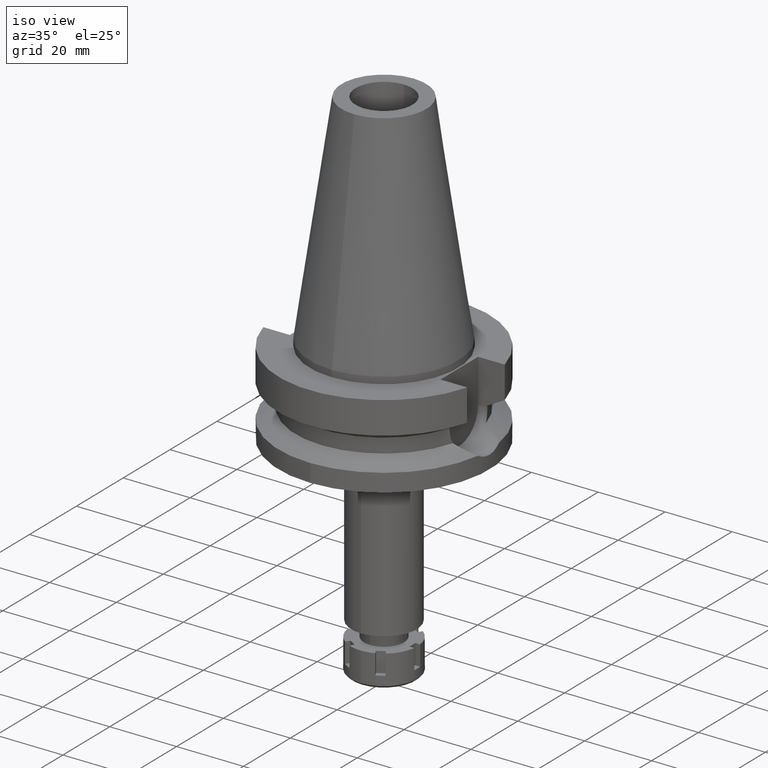
[diagram: clean part render]
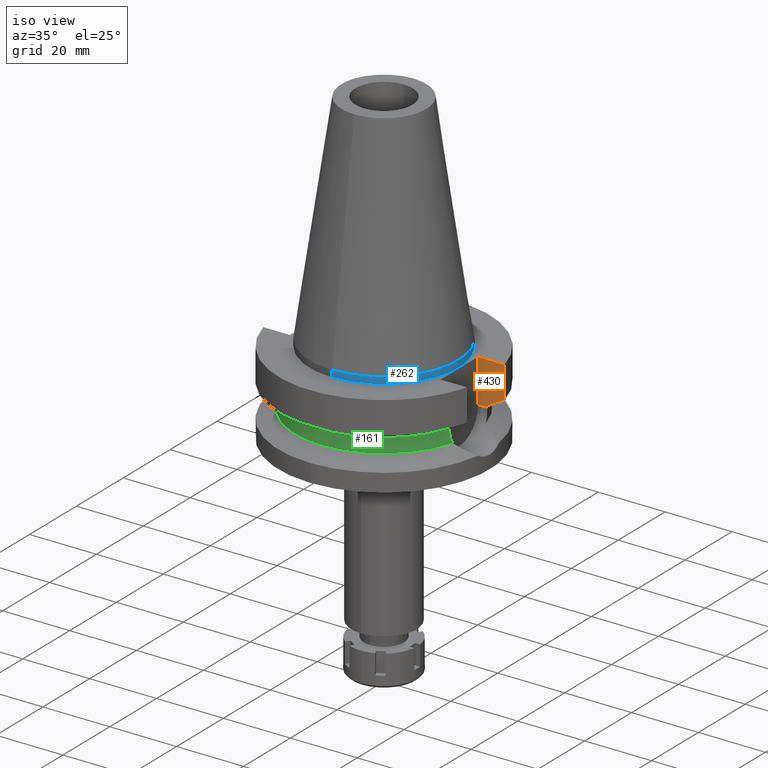
[diagram: same view with three faces highlighted in distinct colors, each labeled with its STEP entity id]
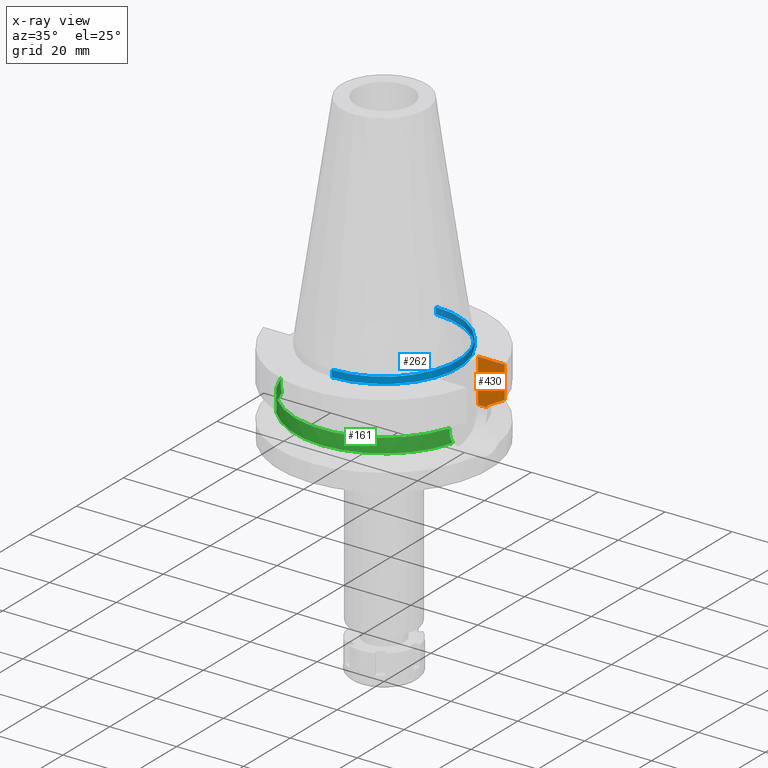
[diagram: x-ray of the same camera — body ghosted, the three highlighted faces saturated]
A machine part, iso view with three faces highlighted in distinct colors.
The next image is the same camera in x-ray (body ghosted, the three faces saturated) — at least one of them is partly hidden behind the body in this view.
Their STEP definitions:

[orange] entity #430 — the highlighted planar face has unit normal (0, 1, 0).
#33 = PLANE ( 'NONE',  #1745 ) ;
#163 = VECTOR ( 'NONE', #3622, 1000.000000000000000 ) ;
#307 = CARTESIAN_POINT ( 'NONE',  ( 30.45402272279000044, 8.050000000000000711, -2.000000000000000000 ) ) ;
#346 = CARTESIAN_POINT ( 'NONE',  ( 22.50000000000000000, 8.050000000000000711, -14.94999999999999929 ) ) ;
#351 = CARTESIAN_POINT ( 'NONE',  ( 25.24772413192000187, 8.049995413579999592, -14.45229204484000007 ) ) ;
#378 = EDGE_CURVE ( 'NONE', #3219, #3565, #2565, .T. ) ;
#393 = DIRECTION ( 'NONE',  ( -0.0000000000000000000, 1.000000000000000000, 0.0000000000000000000 ) ) ;
#430 = ADVANCED_FACE ( 'NONE', ( #2571 ), #33, .F. ) ;
#501 = B_SPLINE_CURVE_WITH_KNOTS ( 'NONE', 3,
 ( #934, #2376, #1171, #351 ),
 .UNSPECIFIED., .F., .F.,
 ( 4, 4 ),
 ( 0.0000000000000000000, 1.000000000000000000 ),
 .UNSPECIFIED. ) ;
#606 = DIRECTION ( 'NONE',  ( 1.000000000000000000, -1.551559937893000172E-14, 0.0000000000000000000 ) ) ;
#670 = VERTEX_POINT ( 'NONE', #702 ) ;
#702 = CARTESIAN_POINT ( 'NONE',  ( 30.45402291392999672, 8.049999276886000033, -11.56551216559999951 ) ) ;
#705 = LINE ( 'NONE', #3414, #2577 ) ;
#713 = DIRECTION ( 'NONE',  ( 0.0000000000000000000, 0.0000000000000000000, -1.000000000000000000 ) ) ;
#731 = LINE ( 'NONE', #3269, #1635 ) ;
#934 = CARTESIAN_POINT ( 'NONE',  ( 30.45402291392999672, 8.049999276886000033, -11.56551216559999951 ) ) ;
#997 = CARTESIAN_POINT ( 'NONE',  ( 22.50000000000000000, 8.050000000000000711, -2.000000000000000000 ) ) ;
#1057 = ORIENTED_EDGE ( 'NONE', *, *, #2336, .T. ) ;
#1092 = EDGE_CURVE ( 'NONE', #670, #1173, #1362, .T. ) ;
#1098 = VECTOR ( 'NONE', #713, 1000.000000000000000 ) ;
#1171 = CARTESIAN_POINT ( 'NONE',  ( 26.83754613842328496, 8.049990817004408328, -13.57774889371837901 ) ) ;
#1173 = VERTEX_POINT ( 'NONE', #307 ) ;
#1207 = EDGE_CURVE ( 'NONE', #3565, #1308, #705, .T. ) ;
#1270 = VECTOR ( 'NONE', #606, 1000.000000000000000 ) ;
#1308 = VERTEX_POINT ( 'NONE', #3594 ) ;
#1362 = LINE ( 'NONE', #2490, #163 ) ;
#1488 = ORIENTED_EDGE ( 'NONE', *, *, #2643, .F. ) ;
#1495 = VERTEX_POINT ( 'NONE', #3138 ) ;
#1513 = DIRECTION ( 'NONE',  ( 1.000000000000000000, 0.0000000000000000000, 0.0000000000000000000 ) ) ;
#1635 = VECTOR ( 'NONE', #1862, 1000.000000000000000 ) ;
#1745 = AXIS2_PLACEMENT_3D ( 'NONE', #2869, #393, #1513 ) ;
#1772 = EDGE_LOOP ( 'NONE', ( #1488, #3179, #2262, #1057, #3397, #2925 ) ) ;
#1847 = EDGE_CURVE ( 'NONE', #1495, #1173, #731, .T. ) ;
#1862 = DIRECTION ( 'NONE',  ( 1.000000000000000000, -3.506251283225999947E-14, 0.0000000000000000000 ) ) ;
#2079 = DIRECTION ( 'NONE',  ( 2.938140796406073577E-06, -9.215082086002228230E-06, 0.9999999999532247497 ) ) ;
#2258 = CARTESIAN_POINT ( 'NONE',  ( 25.24772266958000344, 8.050000000000000711, -14.94999999999999929 ) ) ;
#2262 = ORIENTED_EDGE ( 'NONE', *, *, #1847, .F. ) ;
#2336 = EDGE_CURVE ( 'NONE', #1495, #3219, #3567, .T. ) ;
#2376 = CARTESIAN_POINT ( 'NONE',  ( 28.57292326956562789, 8.049998554712924914, -12.61549606729479223 ) ) ;
#2490 = CARTESIAN_POINT ( 'NONE',  ( 30.45402291392999672, 8.049999276886000033, -11.56551216559999951 ) ) ;
#2565 = LINE ( 'NONE', #3147, #1270 ) ;
#2571 = FACE_OUTER_BOUND ( 'NONE', #1772, .T. ) ;
#2577 = VECTOR ( 'NONE', #2079, 1000.000000000000114 ) ;
#2643 = EDGE_CURVE ( 'NONE', #670, #1308, #501, .T. ) ;
#2869 = CARTESIAN_POINT ( 'NONE',  ( 22.50000000000000000, 8.050000000000000711, -14.94999999999999929 ) ) ;
#2925 = ORIENTED_EDGE ( 'NONE', *, *, #1207, .T. ) ;
#3138 = CARTESIAN_POINT ( 'NONE',  ( 22.50000000000000000, 8.050000000000000711, -2.000000000000000000 ) ) ;
#3147 = CARTESIAN_POINT ( 'NONE',  ( 22.50000000000000000, 8.050000000000000711, -14.94999999999999929 ) ) ;
#3179 = ORIENTED_EDGE ( 'NONE', *, *, #1092, .T. ) ;
#3219 = VERTEX_POINT ( 'NONE', #346 ) ;
#3269 = CARTESIAN_POINT ( 'NONE',  ( 22.50000000000000000, 8.050000000000000711, -2.000000000000000000 ) ) ;
#3397 = ORIENTED_EDGE ( 'NONE', *, *, #378, .T. ) ;
#3414 = CARTESIAN_POINT ( 'NONE',  ( 25.24772266958000344, 8.050000000000000711, -14.94999999999999929 ) ) ;
#3565 = VERTEX_POINT ( 'NONE', #2258 ) ;
#3567 = LINE ( 'NONE', #997, #1098 ) ;
#3594 = CARTESIAN_POINT ( 'NONE',  ( 25.24772413192000187, 8.049995413579999592, -14.45229204484000007 ) ) ;
#3622 = DIRECTION ( 'NONE',  ( -1.998240924063988768E-08, 7.559588444288955990E-08, 0.9999999999999968914 ) ) ;

[blue] entity #262 — the highlighted cylindrical surface (partial cylindrical patch) has radius 22.225 mm, axis along (0, 0, -1).
#25 = CARTESIAN_POINT ( 'NONE',  ( 0.0000000000000000000, -22.22500000000000142, 2.842170943039999687E-14 ) ) ;
#95 = CARTESIAN_POINT ( 'NONE',  ( 0.0000000000000000000, 2.117659245085999800E-14, 72.92000000000000171 ) ) ;
#174 = AXIS2_PLACEMENT_3D ( 'NONE', #1125, #2842, #3377 ) ;
#211 = AXIS2_PLACEMENT_3D ( 'NONE', #95, #1217, #2343 ) ;
#262 = ADVANCED_FACE ( 'NONE', ( #1496 ), #1086, .T. ) ;
#382 = CARTESIAN_POINT ( 'NONE',  ( 0.0000000000000000000, 2.117659245085999800E-14, -2.000000000000000000 ) ) ;
#767 = ORIENTED_EDGE ( 'NONE', *, *, #3142, .T. ) ;
#890 = DIRECTION ( 'NONE',  ( 0.0000000000000000000, 0.0000000000000000000, 1.000000000000000000 ) ) ;
#938 = DIRECTION ( 'NONE',  ( 0.0000000000000000000, 8.171241461240999414E-14, -1.000000000000000000 ) ) ;
#1086 = CYLINDRICAL_SURFACE ( 'NONE', #211, 22.22500000000000142 ) ;
#1125 = CARTESIAN_POINT ( 'NONE',  ( 0.0000000000000000000, 1.625106302469000024E-14, 2.842170943039999687E-14 ) ) ;
#1174 = CARTESIAN_POINT ( 'NONE',  ( 0.0000000000000000000, 22.22500000000000142, 6.394884621841000123E-14 ) ) ;
#1217 = DIRECTION ( 'NONE',  ( 0.0000000000000000000, 0.0000000000000000000, -1.000000000000000000 ) ) ;
#1323 = VERTEX_POINT ( 'NONE', #3035 ) ;
#1496 = FACE_OUTER_BOUND ( 'NONE', #3603, .T. ) ;
#1690 = CARTESIAN_POINT ( 'NONE',  ( 0.0000000000000000000, 22.22500000000000142, 7.105427357600999334E-14 ) ) ;
#1728 = DIRECTION ( 'NONE',  ( 0.0000000000000000000, -1.000000000000000000, 0.0000000000000000000 ) ) ;
#1747 = CARTESIAN_POINT ( 'NONE',  ( 0.0000000000000000000, -22.22500000000000142, 6.394884621841000123E-14 ) ) ;
#1769 = DIRECTION ( 'NONE',  ( 0.0000000000000000000, -8.704148513061000085E-14, -1.000000000000000000 ) ) ;
#1777 = LINE ( 'NONE', #1174, #1982 ) ;
#1982 = VECTOR ( 'NONE', #938, 1000.000000000000000 ) ;
#2089 = ORIENTED_EDGE ( 'NONE', *, *, #3194, .T. ) ;
#2245 = EDGE_CURVE ( 'NONE', #2921, #2948, #1777, .T. ) ;
#2343 = DIRECTION ( 'NONE',  ( 0.0000000000000000000, -1.000000000000000000, 0.0000000000000000000 ) ) ;
#2524 = VERTEX_POINT ( 'NONE', #25 ) ;
#2528 = ORIENTED_EDGE ( 'NONE', *, *, #2245, .F. ) ;
#2828 = CIRCLE ( 'NONE', #3192, 22.22500000000000142 ) ;
#2842 = DIRECTION ( 'NONE',  ( 0.0000000000000000000, 0.0000000000000000000, -1.000000000000000000 ) ) ;
#2918 = LINE ( 'NONE', #1747, #3019 ) ;
#2919 = EDGE_CURVE ( 'NONE', #2921, #2524, #3305, .T. ) ;
#2921 = VERTEX_POINT ( 'NONE', #1690 ) ;
#2948 = VERTEX_POINT ( 'NONE', #3363 ) ;
#3019 = VECTOR ( 'NONE', #1769, 1000.000000000000000 ) ;
#3035 = CARTESIAN_POINT ( 'NONE',  ( 0.0000000000000000000, -22.22500000000000142, -2.000000000000000000 ) ) ;
#3142 = EDGE_CURVE ( 'NONE', #1323, #2948, #2828, .T. ) ;
#3192 = AXIS2_PLACEMENT_3D ( 'NONE', #382, #890, #1728 ) ;
#3194 = EDGE_CURVE ( 'NONE', #2524, #1323, #2918, .T. ) ;
#3245 = ORIENTED_EDGE ( 'NONE', *, *, #2919, .T. ) ;
#3305 = CIRCLE ( 'NONE', #174, 22.22500000000000142 ) ;
#3363 = CARTESIAN_POINT ( 'NONE',  ( 0.0000000000000000000, 22.22500000000000142, -2.000000000000000000 ) ) ;
#3377 = DIRECTION ( 'NONE',  ( 0.0000000000000000000, 1.000000000000000000, 0.0000000000000000000 ) ) ;
#3603 = EDGE_LOOP ( 'NONE', ( #3245, #2089, #767, #2528 ) ) ;

[green] entity #161 — the highlighted cylindrical surface (partial cylindrical patch) has radius 26.5 mm, axis along (0, 0, -1).
#32 = EDGE_CURVE ( 'NONE', #2640, #3425, #2954, .T. ) ;
#63 = CARTESIAN_POINT ( 'NONE',  ( -25.24772266958000344, -8.050000000000000711, -14.94999999999999929 ) ) ;
#97 = CARTESIAN_POINT ( 'NONE',  ( 25.24772266958000344, -8.050000000000000711, -14.45225699861000024 ) ) ;
#161 = ADVANCED_FACE ( 'NONE', ( #2606 ), #1384, .T. ) ;
#229 = CARTESIAN_POINT ( 'NONE',  ( 25.53175183775000079, -7.097862220092999941, -18.74774300138999905 ) ) ;
#263 = DIRECTION ( 'NONE',  ( 0.0000000000000000000, -1.000000000000000000, 0.0000000000000000000 ) ) ;
#313 = CARTESIAN_POINT ( 'NONE',  ( -25.32419709970372068, -7.806318959917333267, -16.91578803894913108 ) ) ;
#359 = DIRECTION ( 'NONE',  ( 1.014647797275021697E-06, 3.182305717125068961E-06, -0.9999999999944216844 ) ) ;
#417 = DIRECTION ( 'NONE',  ( 0.0000000000000000000, 0.0000000000000000000, -1.000000000000000000 ) ) ;
#429 = EDGE_CURVE ( 'NONE', #2083, #3082, #1722, .T. ) ;
#458 = CARTESIAN_POINT ( 'NONE',  ( 25.31950905643225269, -7.821515286679913359, -16.85442525727320273 ) ) ;
#510 = AXIS2_PLACEMENT_3D ( 'NONE', #2032, #815, #263 ) ;
#511 = CARTESIAN_POINT ( 'NONE',  ( 25.27268336911707891, -7.971811480182248388, -16.08115959834941222 ) ) ;
#585 = CARTESIAN_POINT ( 'NONE',  ( 0.0000000000000000000, 0.0000000000000000000, -18.74774300138999905 ) ) ;
#622 = CIRCLE ( 'NONE', #2107, 26.50000000000000000 ) ;
#651 = ORIENTED_EDGE ( 'NONE', *, *, #863, .T. ) ;
#744 = VERTEX_POINT ( 'NONE', #97 ) ;
#763 = CARTESIAN_POINT ( 'NONE',  ( 25.28048358772242210, -7.947040743794914874, -16.24400980664077920 ) ) ;
#815 = DIRECTION ( 'NONE',  ( 0.0000000000000000000, 0.0000000000000000000, -1.000000000000000000 ) ) ;
#858 = CARTESIAN_POINT ( 'NONE',  ( -25.39164951575627072, -7.584807667268660403, -17.65197957178662591 ) ) ;
#863 = EDGE_CURVE ( 'NONE', #2083, #3425, #622, .T. ) ;
#878 = DIRECTION ( 'NONE',  ( 0.0000000000000000000, -1.000000000000000000, 0.0000000000000000000 ) ) ;
#1071 = CARTESIAN_POINT ( 'NONE',  ( 25.25396284446427231, -8.030907492774099765, -15.59360398733923248 ) ) ;
#1135 = CARTESIAN_POINT ( 'NONE',  ( -25.33293017119734003, -7.777974374869151220, -17.02562462714743319 ) ) ;
#1166 = EDGE_CURVE ( 'NONE', #3082, #3391, #2846, .T. ) ;
#1258 = EDGE_CURVE ( 'NONE', #744, #3391, #3005, .T. ) ;
#1302 = CARTESIAN_POINT ( 'NONE',  ( 25.43786330456363487, -7.435589081430040714, -18.11654211998952135 ) ) ;
#1384 = CYLINDRICAL_SURFACE ( 'NONE', #510, 26.50000000000000000 ) ;
#1401 = CARTESIAN_POINT ( 'NONE',  ( -25.24772266958001055, -8.049999999999984723, -15.58999736305831973 ) ) ;
#1476 = CARTESIAN_POINT ( 'NONE',  ( -25.53175183775000079, -7.097862220092999941, -18.74774300138999905 ) ) ;
#1531 = CARTESIAN_POINT ( 'NONE',  ( 25.24772266958000344, -8.050000000000000711, -14.94999999999999929 ) ) ;
#1540 = LINE ( 'NONE', #3462, #2110 ) ;
#1548 = ORIENTED_EDGE ( 'NONE', *, *, #32, .F. ) ;
#1650 = EDGE_CURVE ( 'NONE', #744, #2640, #1540, .T. ) ;
#1680 = CARTESIAN_POINT ( 'NONE',  ( -25.27269391206938565, -7.973288729653494222, -16.24537813287016164 ) ) ;
#1722 = B_SPLINE_CURVE_WITH_KNOTS ( 'NONE', 3,
 ( #1476, #2319, #2045, #858, #2549, #3188, #2909, #1135, #1986, #3132, #313, #1680, #1401, #1968 ),
 .UNSPECIFIED., .F., .F.,
 ( 4, 2, 2, 1, 1, 2, 2, 4 ),
 ( 0.0000000000000000000, 0.2499999999999834022, 0.3749999999999751865, 0.4374999999999711342, 0.4687499999999688582, 0.4843749999999691913, 0.4999999999999694689, 1.000000000000000000 ),
 .UNSPECIFIED. ) ;
#1760 = ORIENTED_EDGE ( 'NONE', *, *, #1166, .F. ) ;
#1819 = CARTESIAN_POINT ( 'NONE',  ( 0.0000000000000000000, 1.065333950388000029E-14, -14.45225699861000024 ) ) ;
#1837 = ORIENTED_EDGE ( 'NONE', *, *, #429, .F. ) ;
#1888 = CARTESIAN_POINT ( 'NONE',  ( -25.24772413202000010, -8.049995413259001253, -14.45229204729999850 ) ) ;
#1896 = CARTESIAN_POINT ( 'NONE',  ( 25.53175183775000079, -7.097862220092999941, -18.74774300138999905 ) ) ;
#1900 = ORIENTED_EDGE ( 'NONE', *, *, #1650, .F. ) ;
#1968 = CARTESIAN_POINT ( 'NONE',  ( -25.24772266958000344, -8.050000000000000711, -14.94999999999999929 ) ) ;
#1986 = CARTESIAN_POINT ( 'NONE',  ( -25.32844777903717670, -7.792527725358711521, -16.96974754109089645 ) ) ;
#2032 = CARTESIAN_POINT ( 'NONE',  ( 0.0000000000000000000, 2.117659245085999800E-14, 72.92000000000000171 ) ) ;
#2045 = CARTESIAN_POINT ( 'NONE',  ( -25.44392837593174406, -7.408239564974261171, -18.11709494192860959 ) ) ;
#2083 = VERTEX_POINT ( 'NONE', #3400 ) ;
#2107 = AXIS2_PLACEMENT_3D ( 'NONE', #585, #2273, #878 ) ;
#2110 = VECTOR ( 'NONE', #359, 1000.000000000000114 ) ;
#2175 = CARTESIAN_POINT ( 'NONE',  ( 25.24772266958000344, -8.050000000000000711, -15.26991324108737302 ) ) ;
#2216 = VECTOR ( 'NONE', #3543, 1000.000000000000227 ) ;
#2273 = DIRECTION ( 'NONE',  ( 0.0000000000000000000, 0.0000000000000000000, 1.000000000000000000 ) ) ;
#2319 = CARTESIAN_POINT ( 'NONE',  ( -25.48482038768794311, -7.266679548363494945, -18.43222872461958772 ) ) ;
#2549 = CARTESIAN_POINT ( 'NONE',  ( -25.37573308860759624, -7.637710303683676649, -17.49818662967809502 ) ) ;
#2606 = FACE_OUTER_BOUND ( 'NONE', #2678, .T. ) ;
#2640 = VERTEX_POINT ( 'NONE', #1531 ) ;
#2678 = EDGE_LOOP ( 'NONE', ( #1837, #651, #1548, #1900, #2985, #1760 ) ) ;
#2692 = CARTESIAN_POINT ( 'NONE',  ( 25.24772266958000344, -8.050000000000000711, -14.94999999999999929 ) ) ;
#2846 = LINE ( 'NONE', #2982, #2216 ) ;
#2909 = CARTESIAN_POINT ( 'NONE',  ( -25.34388450891127320, -7.742333382909245110, -17.15666984726874844 ) ) ;
#2954 = B_SPLINE_CURVE_WITH_KNOTS ( 'NONE', 3,
 ( #2692, #2175, #1071, #511, #763, #3340, #3577, #3312, #3290, #458, #3023, #3599, #1302, #1896 ),
 .UNSPECIFIED., .F., .F.,
 ( 4, 2, 2, 1, 1, 2, 2, 4 ),
 ( 0.0000000000000000000, 0.2500000000000145439, 0.3750000000000218159, 0.4375000000000255351, 0.4687500000000285882, 0.4843750000000303091, 0.5000000000000319744, 1.000000000000000000 ),
 .UNSPECIFIED. ) ;
#2962 = DIRECTION ( 'NONE',  ( 0.9527442516822307583, -0.3037735849057093818, 0.0000000000000000000 ) ) ;
#2982 = CARTESIAN_POINT ( 'NONE',  ( -25.24772266958000344, -8.050000000000000711, -14.94999999999999929 ) ) ;
#2985 = ORIENTED_EDGE ( 'NONE', *, *, #1258, .T. ) ;
#3005 = CIRCLE ( 'NONE', #3241, 26.50000000000000711 ) ;
#3023 = CARTESIAN_POINT ( 'NONE',  ( 25.32118155423751560, -7.816096717212906775, -16.87652453452377443 ) ) ;
#3082 = VERTEX_POINT ( 'NONE', #63 ) ;
#3132 = CARTESIAN_POINT ( 'NONE',  ( -25.32550670070882859, -7.802071535315739936, -16.93256103009284530 ) ) ;
#3188 = CARTESIAN_POINT ( 'NONE',  ( -25.35412323724926509, -7.708830947900177755, -17.27007949483692428 ) ) ;
#3241 = AXIS2_PLACEMENT_3D ( 'NONE', #1819, #417, #2962 ) ;
#3290 = CARTESIAN_POINT ( 'NONE',  ( 25.31648647172267630, -7.831300037042746354, -16.81378020971410336 ) ) ;
#3312 = CARTESIAN_POINT ( 'NONE',  ( 25.31202572170774800, -7.845729406580115750, -16.75279821057748464 ) ) ;
#3340 = CARTESIAN_POINT ( 'NONE',  ( 25.29452398121201284, -7.902090651792915033, -16.48828405102948125 ) ) ;
#3391 = VERTEX_POINT ( 'NONE', #1888 ) ;
#3400 = CARTESIAN_POINT ( 'NONE',  ( -25.53175183775000079, -7.097862220092999941, -18.74774300138999905 ) ) ;
#3425 = VERTEX_POINT ( 'NONE', #229 ) ;
#3462 = CARTESIAN_POINT ( 'NONE',  ( 25.24772216452999984, -8.050001584008999345, -14.45224489538999890 ) ) ;
#3543 = DIRECTION ( 'NONE',  ( -2.938346339612055372E-06, 9.215726724121168570E-06, 0.9999999999532181993 ) ) ;
#3577 = CARTESIAN_POINT ( 'NONE',  ( 25.30212919435223995, -7.877667573970332349, -16.61042047323947202 ) ) ;
#3599 = CARTESIAN_POINT ( 'NONE',  ( 25.36814761471070767, -7.663830712965410186, -17.48803584493431984 ) ) ;